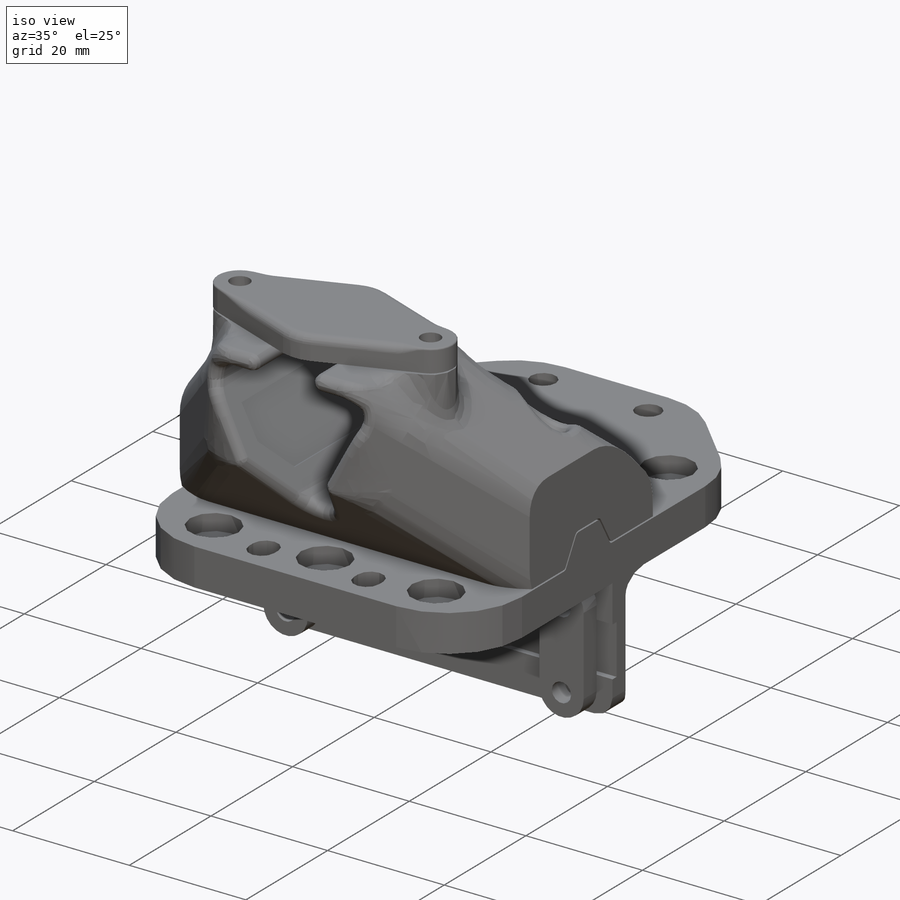
[diagram: iso view]
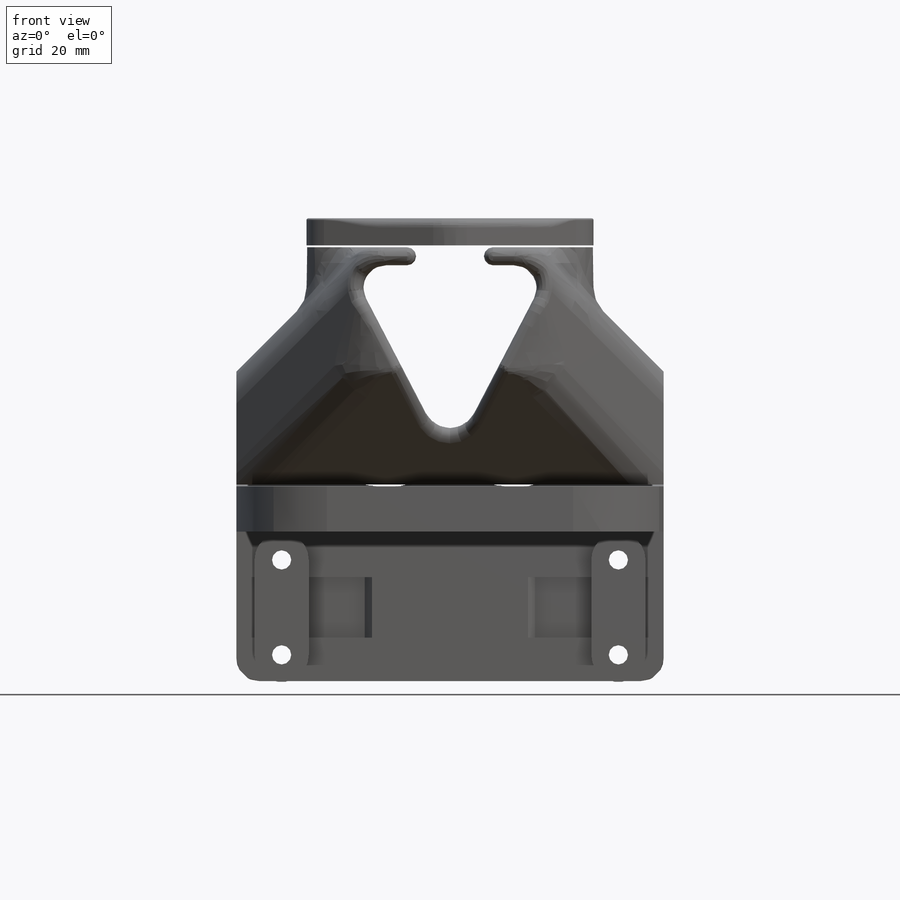
[diagram: front view]
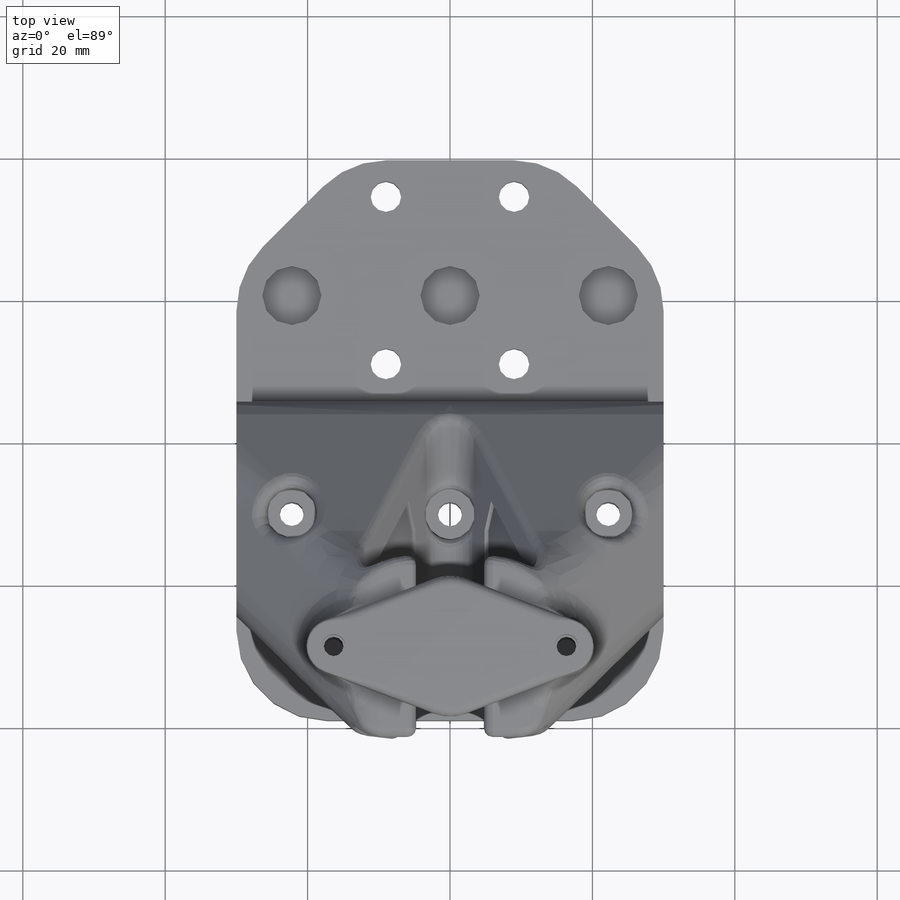
[diagram: top view]
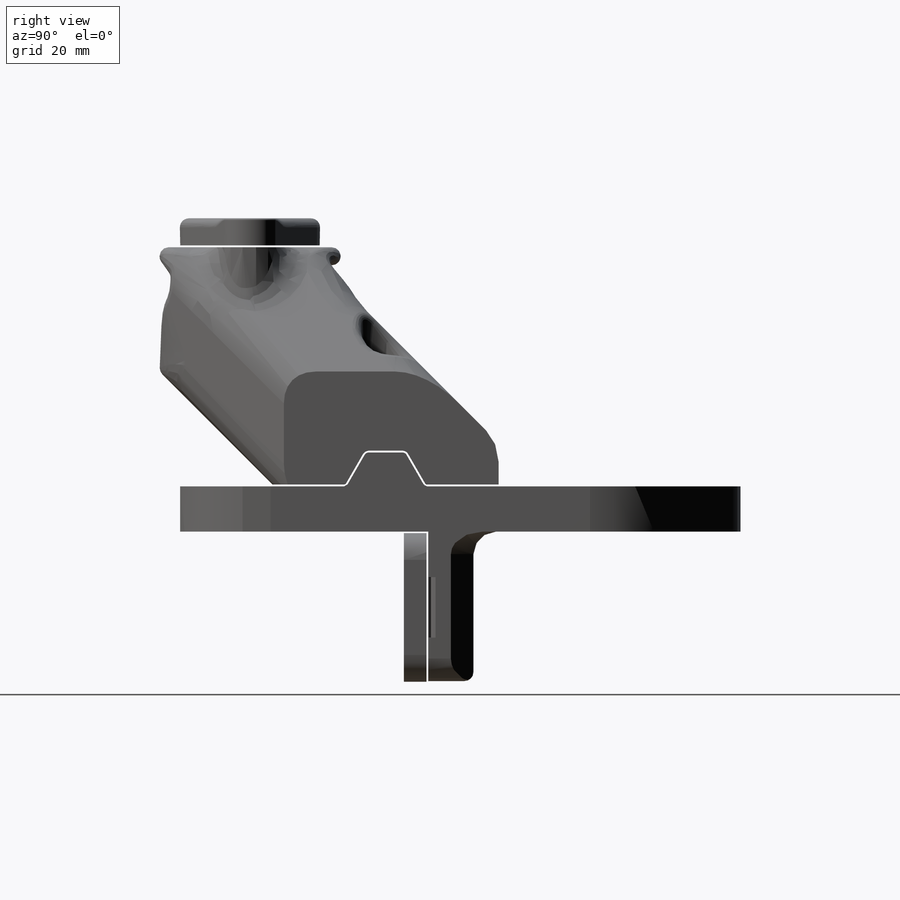
[diagram: right view]
SOLIDWORKS PART (.sldprt)
format: sldprt  version: not decoded by parser v0  size: 1,865,216 bytes
history: native  units: mm
features: sketch x33, cut_extrude x21, fillet x14, extrude x8, chamfer x5, mirror x4, delete_body x3, material x1, cut_revolve x1, hole x1, plane x1 (+13 scaffold rows collapsed)
feature tree (105):
  scaffold x13  (default folders/planes/origin — collapsed)
  material  "Material <not specified>"
  sketch  "Sketch1"  dims[D6=4.3mm D1=78.7mm D2=60.0mm D3=23.5mm D4=18.0mm D5=45.0mm D7=1.0mm]
  extrude  "Boss-Extrude1"  Depth=6.35mm
  sketch  "Sketch2"  dims[D1=6.35mm D2=34.85mm]
  extrude  "Boss-Extrude2"  Depth=21mm
  sketch  "Sketch3"  dims[D1=12.0mm]
  extrude  "Boss-Extrude3"  Depth=31.75mm
  sketch  "Sketch4"  dims[D1=16.129mm D2=12.2428mm D3=3.8mm D4=5.4mm D5=29.35mm]
  cut_revolve  "Cut-Revolve1"  Angle=360deg
  sketch  "Sketch5"
  cut_extrude  "Cut-Extrude1"  [1 undecoded]
  chamfer  "Chamfer1"  Distance=12.7mm Angle=30deg
  sketch  "Sketch6"  dims[D1=0.381mm]
  cut_extrude  "Cut-Extrude2"  Depth=25.4mm
  fillet  "Fillet2"  Radius=9.525mm
  sketch  "Sketch8"  dims[c1.D4=0.635mm c1.D6=0.254mm c1.D1=1.016mm c1.D2=~1.922548mm c2.D2=45.0deg c2.D3=19.05mm c2.D4=0.5mm c2.D5=6.35mm]
  cut_extrude  "Cut-Extrude3"  Depth=8.5mm
  sketch  "Sketch9"  dims[D1=2.7mm D2=13.335mm]
  cut_extrude  "Cut-Extrude4"  [1 undecoded]
  sketch  "Sketch10"  dims[D1=3.81mm D2=3.3mm]
  extrude  "Boss-Extrude5"  Depth=3.175mm
  mirror  "Mirror1"
  mirror  "Mirror3"
  chamfer  "Chamfer2"  Distance=3.175mm Angle=45deg
  fillet  "Fillet3"  Radius=3.175mm
  fillet  "Fillet4"  Radius=3.175mm
  sketch  "Sketch11"  dims[D1=7.62mm D2=31.75mm]
  cut_extrude  "Cut-Extrude5"  [1 undecoded]
  fillet  "Fillet5"  Radius=6.35mm
  fillet  "Fillet6"  Radius=1.27mm
  chamfer  "Chamfer3"  Distance=1.27mm Angle=45deg
  chamfer  "Chamfer5"  Distance=1.27mm Angle=45deg
  chamfer  "Chamfer4"  Distance=15.875mm Angle=45deg
  fillet  "Fillet7"  Radius=12.7mm
  sketch  "Sketch12"  dims[c1.D1=~9.356465mm c2.D1=120.0deg c2.D2=~2.877051mm c3.D2=120.0deg c3.D3=11.0mm c3.D4=4.7625mm c3.D5=0.1905mm c3.D6=2.54mm c3.D7=5.0mm]
  hole  "CBORE for M3 Pan Head Machine Screw1"  Diameter=3.4mm Depth=26.796mm
  sketch  "Sketch14"  dims[D1=50.8mm]
  sketch  "Sketch13"  dims[hole-wizard template sketch: 26 standard entries collapsed; hole parameters kept: c8.Hole Dia.=3.4mm c8.Hole Depth=26.796mm c8.C'Bore Dia.=7.0mm c8.C'Bore Depth=10.0mm c8.Near C'Sink Dia.=7.05mm c8.D6=~4.399409mm c8.Near C'Sink Angle=90.0deg c8.D7=~14.816244mm c8.Drill Angle=180.0deg]
  fillet  "Fillet8"  Radius=0.635mm
  fillet  "Fillet9"  Radius=0.635mm
  sketch  "Sketch17"  dims[D1=8.3058mm D2=3.175mm D3=38.1mm D4=44.45mm D5=20.32mm]
  cut_extrude  "Cut-Extrude6"  Depth=2.794mm
  plane  "Plane1"  Offset=6.35mm
  sketch  "Sketch19"  dims[c1.D1=6.0mm c1.D2=~2.58521mm c2.D2=240.0deg c3.D2=~3.234893mm c4.D2=60.0deg]
  cut_extrude  "Cut-Extrude8"  Depth=3mm
  sketch  "Sketch21"  dims[D1=5.75mm]
  cut_extrude  "Cut-Extrude10"  [1 undecoded]
  sketch  "Sketch22"  dims[D1=5.5mm]
  sketch  "Sketch23"  dims[D3=3.4mm D1=6.0mm D2=44.45mm]
  cut_extrude  "Cut-Extrude12"  Depth=3.81mm
  cut_extrude  "Cut-Extrude13"  [1 undecoded]
  sketch  "Sketch23<3>"
  cut_extrude  "Cut-Extrude14"  [1 undecoded]
  fillet  "Fillet10"  Radius=0.4mm
  delete_body  "Body-Delete1"
  mirror  "Body-Delete2"
  sketch  "Sketch24"  dims[c1.D3=12.7mm c1.D8=19.05mm c1.D2=25.4mm c1.D4=6.35mm c1.D5=15.875mm c1.D6=~7.678412mm c2.D6=45.0deg c2.D7=28.575mm c2.D8=11.1125mm c3.D8=45.0deg c4.D8=15.875mm c4.D9=31.75mm c5.D9=45.0deg c5.D1=0.254mm]
  extrude  "Boss-Extrude6"  Depth=30mm
  sketch  "Sketch25"  dims[c1.D4=3.175mm c1.D6=3.81mm c1.D1=2.54mm c1.D2=4.7625mm c1.D3=~46.751024mm c2.D3=27.5deg c2.D5=22.86mm]
  cut_extrude  "Cut-Extrude15"  [1 undecoded]
  sketch  "Sketch26"
  cut_extrude  "Cut-Extrude16"  Depth=4.7625mm
  sketch  "Sketch27"  dims[D1=6.985mm]
  cut_extrude  "Cut-Extrude17"  Depth=4.7625mm
  cut_extrude  "Cut-Extrude18"  [1 undecoded]
  sketch  "Sketch27<3>"
  cut_extrude  "Cut-Extrude23"  [1 undecoded]
  sketch  "Sketch27<4>"  dims[D1=1.905mm]
  cut_extrude  "Cut-Extrude24"  [1 undecoded]
  sketch  "Sketch27<5>"
  sketch  "Sketch28"
  cut_extrude  "Cut-Extrude19"  [1 undecoded]
  sketch  "Sketch29"
  cut_extrude  "Cut-Extrude20"  [1 undecoded]
  sketch  "Sketch34"  dims[D1=2.75mm D2=3.81mm]
  extrude  "Boss-Extrude8"  [1 undecoded]
  fillet  "Fillet11"  Radius=6.35mm
  fillet  "Fillet12"  Radius=1.27mm
  fillet  "Fillet13"  Radius=6.35mm
  delete_body  "VarFillet2"
  fillet  "Fillet14"  Radius=4.7625mm
  sketch  "Sketch35"
  cut_extrude  "Cut-Extrude25"  Depth=19.05mm
  sketch  "Sketch36"  dims[c1.D1=3.175mm c1.D2=3.175mm c1.D3=3.175mm c1.D4=~6.304551mm c2.D4=~0.756699deg c3.D4=3.175mm c3.D5=3.175mm c3.D6=~4.118664mm c4.D6=75.0deg c4.D7=~2.033725mm c5.D7=~153.426627deg c6.D7=~4.065973mm c6.D3=3.175mm c6.D6=3.175mm]
  cut_extrude  "Cut-Extrude26"  Depth=0.635mm
  fillet  "Fillet16"  Radius=1.27mm
  mirror  "Mirror4"
  sketch  "Sketch37"  dims[c1.D3=3.4925mm c1.D4=3.3mm c1.D1=6.985mm c1.D2=6.35mm c2.D3=3.175mm]
  extrude  "Boss-Extrude9"  Depth=0.635mm
  extrude  "Boss-Extrude10"  [1 undecoded]
  sketch  "Sketch37<2>"  dims[D1=3.175mm]
  delete_body  "VarFillet3"
decode coverage: 61 of 90 modeling features carry decoded parameters
note: ~ marks probable driven/reference dimensions
note: 14 parameter values undecoded
summary: no parameter record found for 14 features
note: suppression state not decoded; provenance and decode notes live in map.json
